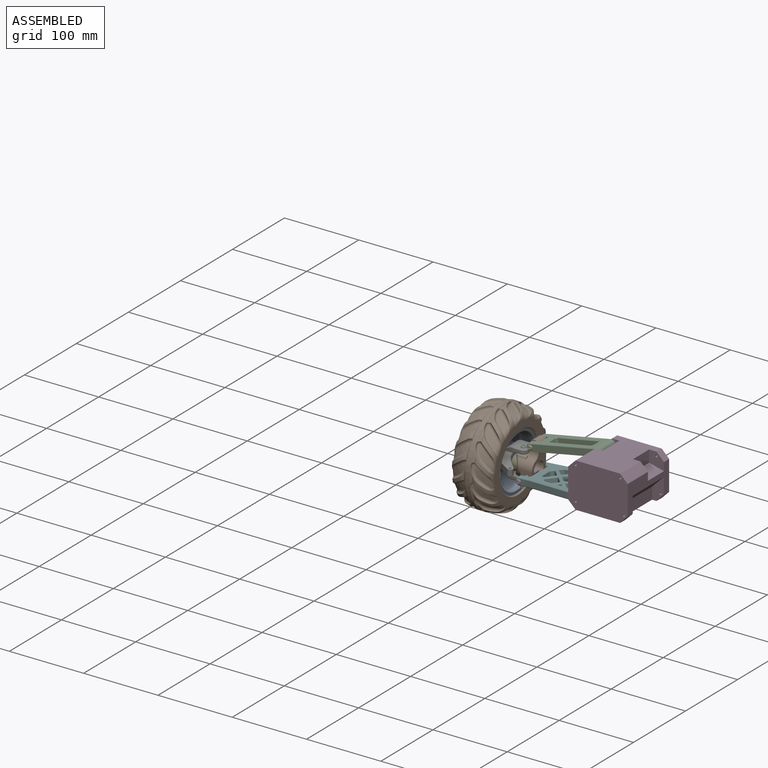
[diagram: assembled view]
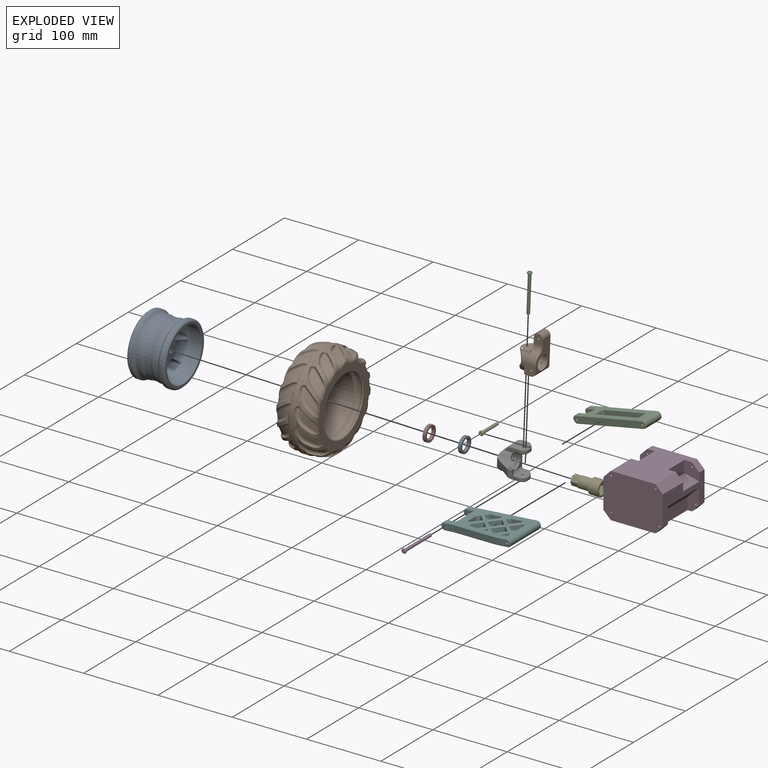
[diagram: exploded view]
GUIDED TOUR — MATED ASSEMBLY (Onshape document 58fa4ad1b70dc3100ced689d, AutoMate assembly 58fa4ad1b70dc3100ced689d_4a7124a2e495755a94dfebb5_230ced2a4817f527e9736989_default)

This assembly has 13 components, labeled P0..P12 below (a component is one placed occurrence of a part; the same part can appear more than once), held together by 13 mates. A mate is a constraint between two components; its type names the relative motion it leaves free:
  FASTENED — locks the two components together rigidly (no relative motion),
  REVOLUTE — leaves rotation about the listed axis free (a hinge).
Axis/direction vectors are unit vectors and 'through' points are millimeter coordinates, both in the assembly's world frame.

MATES
  1. REVOLUTE "Revolute 2": P12 <-> P8, axis (-0.999, -0.031, 0.040) through (-144.44, 8.21, 10.37) mm
  2. FASTENED "Fastened 9": P1 <-> P0, direction (-0.999, -0.031, 0.040) through (-191.38, 6.77, 12.23) mm
  3. REVOLUTE "Revolute 3": P9 <-> P5, axis (0.000, 1.000, 0.000) through (-119.72, 22.00, 2.88) mm
  4. FASTENED "Fastened 3": P7 <-> P6, direction (-0.999, -0.031, 0.040) through (-159.42, 7.75, 10.96) mm
  5. FASTENED "Fastened 4": P11 <-> P5, direction (0.000, -1.000, 0.000) through (-119.72, -21.00, 2.88) mm
  6. FASTENED "Fastened 7": P0 <-> P7, direction (0.999, 0.031, -0.040) through (-159.42, 7.75, 10.96) mm
  7. REVOLUTE "Revolute 5": P10 <-> P9, axis (0.000, -1.000, 0.000) through (-118.35, 22.00, 37.36) mm
  8. REVOLUTE "Revolute 1": P6 <-> P9, axis (-0.040, 0.000, -0.999) through (-134.39, 8.50, 23.98) mm
  9. FASTENED "Fastened 1": P4 <-> P10, direction (0.000, 1.000, 0.000) through (-118.35, -1.00, 37.36) mm
  10. REVOLUTE "Revolute 6": P5 <-> P3, axis (0.000, 1.000, 0.000) through (-30.00, 30.00, 10.00) mm
  11. FASTENED "Fastened 8": P2 <-> P6, direction (-0.040, 0.000, -0.999) through (-134.16, 8.50, 29.98) mm
  12. REVOLUTE "Revolute 4": P10 <-> P3, axis (0.000, -1.000, 0.000) through (-30.00, -1.00, 54.50) mm
  13. FASTENED "Fastened 2": P8 <-> P6, direction (0.999, 0.031, -0.040) through (-144.44, 8.21, 10.37) mm

ASSEMBLY ORDER
  1. P6 — the base component [order heuristic]
  2. P2 — core [order heuristic]
  3. P12 — core [order heuristic]
  4. P8 — core [order heuristic]
  5. P9 — core [order heuristic]
  6. P7 — core [order heuristic]
  7. P1 — core [order heuristic]
  8. P0 — core [order heuristic]
  9. P11 [order verified]
  10. P5 [order verified]
  11. P10 [order verified]
  12. P4 [order verified]
  13. P3 [order verified]
Order-tag legend:
  [order verified] — this step's position reverses a verified removal order: the component was checked to insert without passing through the ones already placed.
  [order heuristic] — the first 8 components form the assembly's core: parts whose collision-free extraction could not be verified, listed in mate-graph order.

Of the 13 components, 3 carry the full construction recipe — the FeatureScript program that regenerates the part's solid from scratch; the rest are supplied as boundary geometry only.
Because this assembly has more than 12 components, the tour below covers the 12 most significant ones individually (every recipe-attached component first, then the largest by part volume), in assembly order; the remaining 1 are summarized together in a grouped section at the end.
Each toured component is shown spotlighted twice — in the assembled view, then in the exploded view, where a leader line traces a displaced component back to its assembled socket (saturated green if recipe-attached, orange if geometry-only; every other component desaturated gray) — followed by its recipe or geometry summary and the mates that hold it.
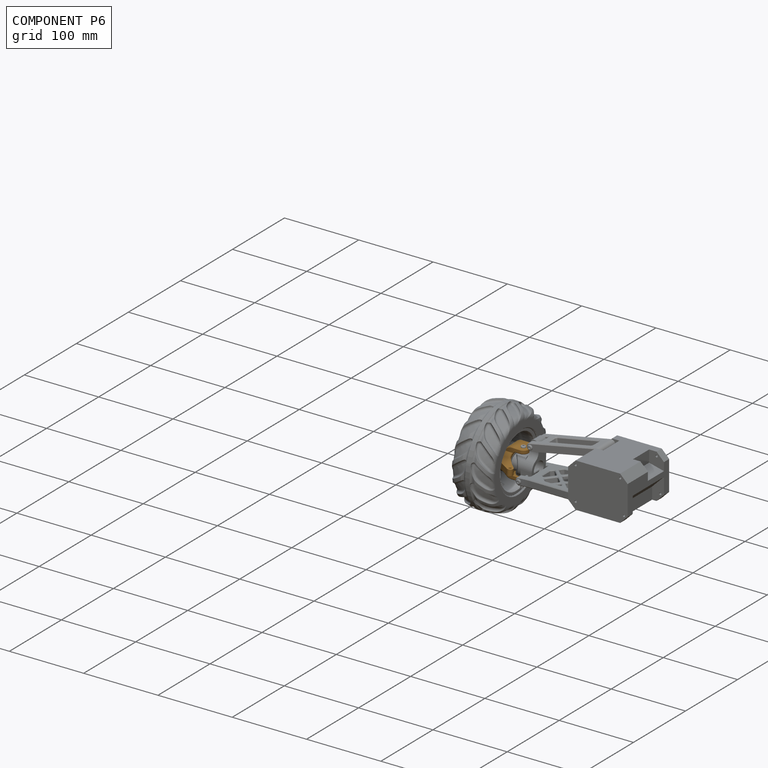
[diagram: component P6 — assembled]
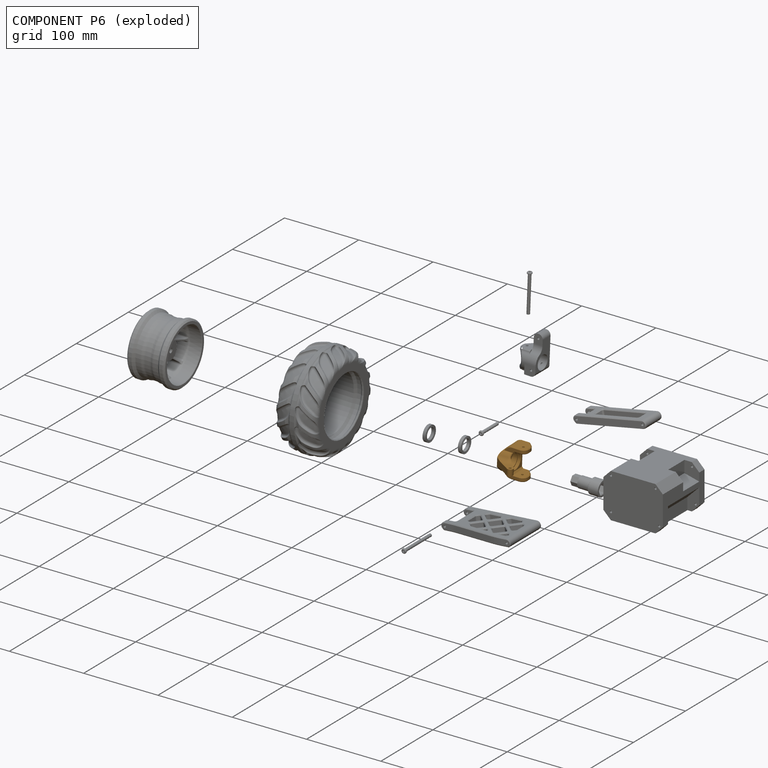
[diagram: component P6 — exploded]
COMPONENT P6 — geometry summary (no construction recipe available for this part):
  bounding box: 44.3 x 40.5 x 32.5 mm
  B-rep topology: 1 solid, 90 faces, 446 edges
  volume: 13637 mm^3 (23% of its bounding box)
Held by: FASTENED mate "Fastened 3" to P7; REVOLUTE mate "Revolute 1" to P9; FASTENED mate "Fastened 8" to P2; FASTENED mate "Fastened 2" to P8.
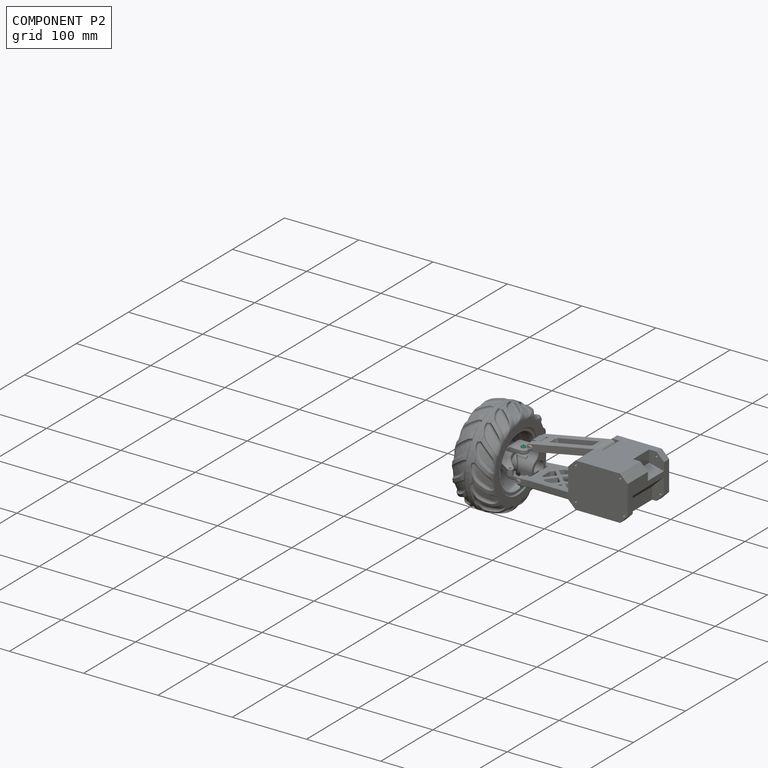
[diagram: component P2 — assembled]
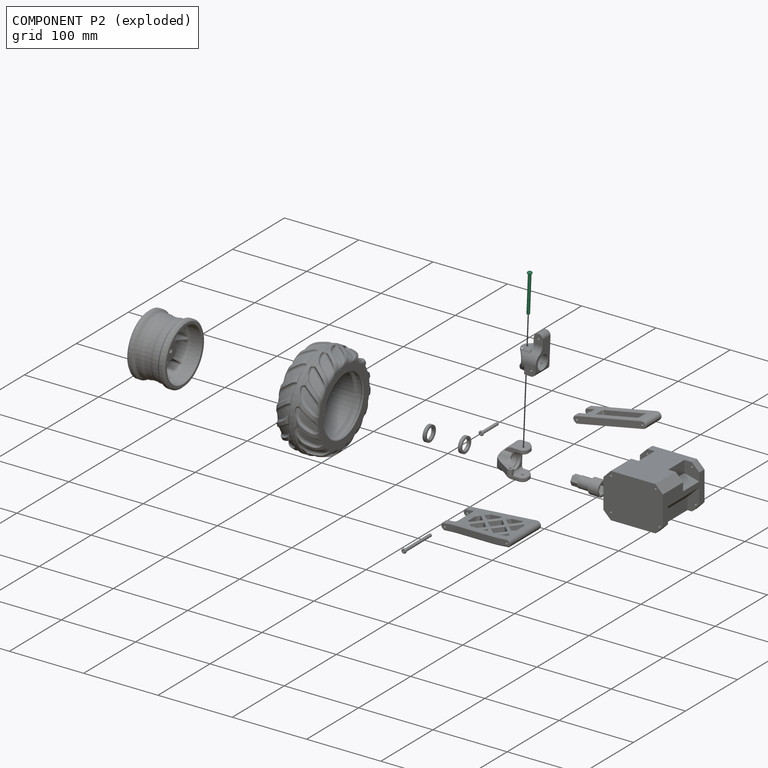
[diagram: component P2 — exploded]
COMPONENT P2 — recipe-attached (CADFS 00728234, mesh-verified: the recipe's output STEP matches this component's geometry to below the mesh-comparison resolution (tessellation chordal tolerance ~0.0792 mm)).
Held by: FASTENED mate "Fastened 8" to P6.
Construction recipe (FeatureScript — the CAD program that rebuilds this solid; sketch coordinates are in the units given by the * unit suffixes, e.g. mm):

FeatureScript 1511;
import(path : "onshape/std/geometry.fs", version : "1511.0");
import(path : "onshape/std/common.fs", version : "1511.0");
const mm = millimeter;
const VERTEX = EntityType.VERTEX;
const EDGE = EntityType.EDGE;
const FACE = EntityType.FACE;
const BODY = EntityType.BODY;
function v(x, y){return vector(x, y);}
function OD(order){return orderDisambiguation(order);}
function OSD(set){return originalSetDisambiguation(set);}
function TD(topology){return topologyDisambiguation(topology);}
function TDD(query){return trueDependencyDisambiguation(query);}
function sQuery(a, b, c) {return sketchEntityQuery(a, b, c);}

annotation { "Feature Type Name" : "Feature", "Feature Type Description" : "" }
export const myFeature = defineFeature(function(context is Context, id is Id, definition is map)
    precondition{}
    {
        {
            var Q0;
            Q0=qCreatedBy(makeId("Top.planeOp"),FACE);
            var sketch = newSketch(context, id + "F0", { "sketchPlane" : qUnion([Q0])});
            skCircle(sketch, "E0", {"center": v(0, 0) * mm, "radius": 3.25 * mm});
            skSolve(sketch);
        }
        {
            var Q0;
            Q0=makeQuery(id+"F0.imprint","IMPRINT",FACE,{"disambiguationData":[TD([[makeQuery(id+"F0.imprint","IMPRINT",EDGE,{"derivedFrom":sQuery(id+"F0.wireOp",EDGE,"E0")}),1.0]])]});
            extrude(context, id + "F1", {"entities" : qUnion([Q0]), "depth" : 2 * mm});
        }
        {
            var Q0;
            Q0=makeQuery(id+"F1.opExtrude","CAP_FACE",FACE,{"disambiguationData":[OSD([sQuery(id+"F0.wireOp",EDGE,"E0")])],"isStart":false});
            var sketch = newSketch(context, id + "F2", { "sketchPlane" : qUnion([Q0])});
            skCircle(sketch, "E1", {"center": v(0, 0) * mm, "radius": 2 * mm});
            skSolve(sketch);
        }
        {
            var Q0;
            Q0=makeQuery(id+"F2.imprint","IMPRINT",FACE,{"disambiguationData":[TD([[makeQuery(id+"F2.imprint","IMPRINT",EDGE,{"derivedFrom":sQuery(id+"F2.wireOp",EDGE,"E1")}),1.0]])]});
            extrude(context, id + "F3", {"entities" : qUnion([Q0]), "operationType" : NewBodyOperationType.ADD, "depth" : 50 * mm});
        }
        {
            var Q0;
            Q0=makeQuery(id+"F1.opExtrude","CAP_FACE",FACE,{"disambiguationData":[OSD([sQuery(id+"F0.wireOp",EDGE,"E0")])],"isStart":true});
            var sketch = newSketch(context, id + "F4", { "sketchPlane" : qUnion([Q0])});
            skCircle(sketch, "E2.cCircle", {"center": v(0, 0) * mm, "radius": 1.25 * mm, "construction": true});
            skLineSegment(sketch, "E2.0", {"start": v(-0.72, 1.25) * mm, "end": v(0.72, 1.25) * mm});
            skLineSegment(sketch, "E2.1", {"start": v(0.72, 1.25) * mm, "end": v(1.44, 0) * mm});
            skLineSegment(sketch, "E2.2", {"start": v(1.44, 0) * mm, "end": v(0.72, -1.25) * mm});
            skLineSegment(sketch, "E2.3", {"start": v(0.72, -1.25) * mm, "end": v(-0.72, -1.25) * mm});
            skLineSegment(sketch, "E2.4", {"start": v(-0.72, -1.25) * mm, "end": v(-1.44, 0) * mm});
            skLineSegment(sketch, "E2.5", {"start": v(-1.44, 0) * mm, "end": v(-0.72, 1.25) * mm});
            skPoint(sketch, "E2.0.midPoint", {"position": v(0, 1.25) * mm});
            skSolve(sketch);
        }
        {
            var Q0;
            Q0=makeQuery(id+"F4.imprint","IMPRINT",FACE,{"disambiguationData":[TD([[makeQuery(id+"F4.imprint","IMPRINT",EDGE,{"derivedFrom":sQuery(id+"F4.wireOp",EDGE,"E2.0")}),-1.0]])]});
            extrude(context, id + "F5", {"entities" : qUnion([Q0]), "operationType" : NewBodyOperationType.REMOVE, "oppositeDirection" : true, "depth" : 1.5 * mm});
        }
        {
            var Q0;
            Q0=makeQuery(id+"F1.opExtrude","CAP_EDGE",EDGE,{"disambiguationData":[OSD([sQuery(id+"F0.wireOp",EDGE,"E0")])],"isStart":true});
            fillet(context, id + "F6", {"entities" : qUnion([Q0]), "radius" : 1.5 * mm, "tangentPropagation" : true, "allowEdgeOverflow" : false});
        }
        {
            var Q0;
            Q0=makeQuery(id+"F5.boolean.opBoolean","COPY",EDGE,{"derivedFrom":makeQuery(id+"F5.opExtrude","CAP_EDGE",EDGE,{"disambiguationData":[OSD([sQuery(id+"F4.wireOp",EDGE,"E2.0")])],"isStart":true})});
            var Q1;
            Q1=makeQuery(id+"F5.boolean.opBoolean","COPY",EDGE,{"derivedFrom":makeQuery(id+"F5.opExtrude","SWEPT_EDGE",EDGE,{"disambiguationData":[OSD([sQuery(id+"F4.wireOp",EDGE,"E2.0"),sQuery(id+"F4.wireOp",EDGE,"E2.1")])]})});
            var Q2;
            Q2=makeQuery(id+"F5.boolean.opBoolean","COPY",EDGE,{"derivedFrom":makeQuery(id+"F5.opExtrude","CAP_EDGE",EDGE,{"disambiguationData":[OSD([sQuery(id+"F4.wireOp",EDGE,"E2.1")])],"isStart":true})});
            var Q3;
            Q3=makeQuery(id+"F5.boolean.opBoolean","COPY",EDGE,{"derivedFrom":makeQuery(id+"F5.opExtrude","SWEPT_EDGE",EDGE,{"disambiguationData":[OSD([sQuery(id+"F4.wireOp",EDGE,"E2.1"),sQuery(id+"F4.wireOp",EDGE,"E2.2")])]})});
            var Q4;
            Q4=makeQuery(id+"F5.boolean.opBoolean","COPY",EDGE,{"derivedFrom":makeQuery(id+"F5.opExtrude","SWEPT_EDGE",EDGE,{"disambiguationData":[OSD([sQuery(id+"F4.wireOp",EDGE,"E2.2"),sQuery(id+"F4.wireOp",EDGE,"E2.3")])]})});
            var Q5;
            Q5=makeQuery(id+"F5.boolean.opBoolean","COPY",FACE,{"derivedFrom":makeQuery(id+"F5.opExtrude","SWEPT_FACE",FACE,{"disambiguationData":[OSD([sQuery(id+"F4.wireOp",EDGE,"E2.3")])]})});
            var Q6;
            Q6=makeQuery(id+"F5.boolean.opBoolean","COPY",FACE,{"derivedFrom":makeQuery(id+"F5.opExtrude","SWEPT_FACE",FACE,{"disambiguationData":[OSD([sQuery(id+"F4.wireOp",EDGE,"E2.4")])]})});
            var Q7;
            Q7=makeQuery(id+"F5.boolean.opBoolean","COPY",FACE,{"derivedFrom":makeQuery(id+"F5.opExtrude","SWEPT_FACE",FACE,{"disambiguationData":[OSD([sQuery(id+"F4.wireOp",EDGE,"E2.5")])]})});
            var Q8;
            Q8=makeQuery(id+"F5.boolean.opBoolean","COPY",FACE,{"derivedFrom":makeQuery(id+"F5.opExtrude","SWEPT_FACE",FACE,{"disambiguationData":[OSD([sQuery(id+"F4.wireOp",EDGE,"E2.0")])]})});
            var Q9;
            Q9=makeQuery(id+"F5.boolean.opBoolean","COPY",FACE,{"derivedFrom":makeQuery(id+"F5.opExtrude","SWEPT_FACE",FACE,{"disambiguationData":[OSD([sQuery(id+"F4.wireOp",EDGE,"E2.1")])]})});
            var Q10;
            Q10=makeQuery(id+"F5.boolean.opBoolean","COPY",FACE,{"derivedFrom":makeQuery(id+"F5.opExtrude","SWEPT_FACE",FACE,{"disambiguationData":[OSD([sQuery(id+"F4.wireOp",EDGE,"E2.2")])]})});
            fillet(context, id + "F7", {"entities" : qUnion([Q0, Q1, Q2, Q3, Q4, Q5, Q6, Q7, Q8, Q9, Q10]), "radius" : 0.2 * mm, "tangentPropagation" : true, "allowEdgeOverflow" : false});
        }
        {
            var Q0;
            Q0=makeQuery(id+"F1.opExtrude","CAP_EDGE",EDGE,{"disambiguationData":[OSD([sQuery(id+"F0.wireOp",EDGE,"E0")])],"isStart":false});
            fillet(context, id + "F8", {"entities" : qUnion([Q0]), "radius" : 0.2 * mm, "tangentPropagation" : true, "allowEdgeOverflow" : false});
        }
    });
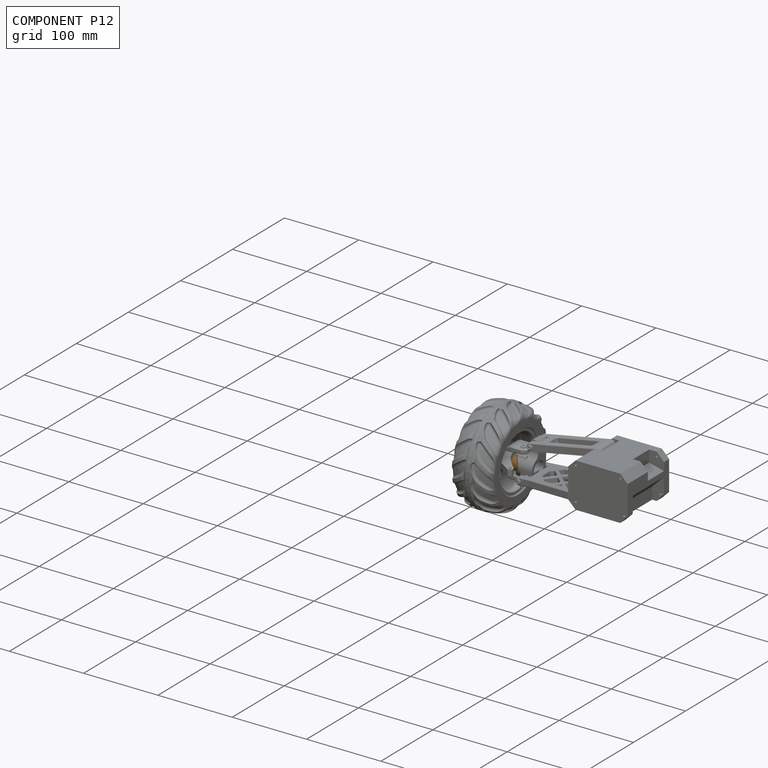
[diagram: component P12 — assembled]
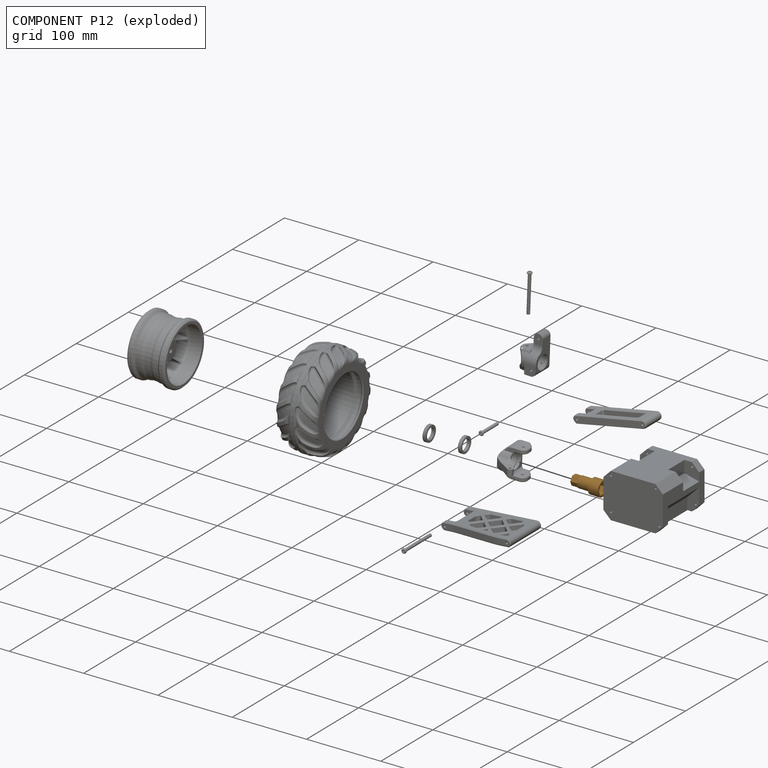
[diagram: component P12 — exploded]
COMPONENT P12 — geometry summary (no construction recipe available for this part):
  bounding box: 38.5 x 20.2 x 20.2 mm
  B-rep topology: 1 solid, 51 faces, 228 edges
  volume: 6569 mm^3 (42% of its bounding box)
  symmetry: 6-fold rotationally symmetric about the z axis; mirror-symmetric across its x mid-plane, y mid-plane
Held by: REVOLUTE mate "Revolute 2" to P8.
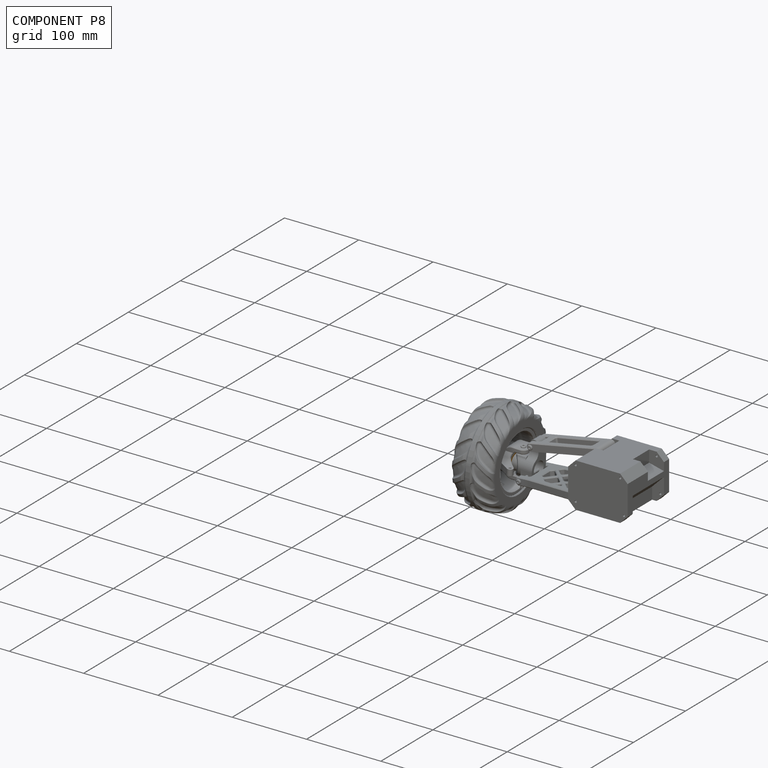
[diagram: component P8 — assembled]
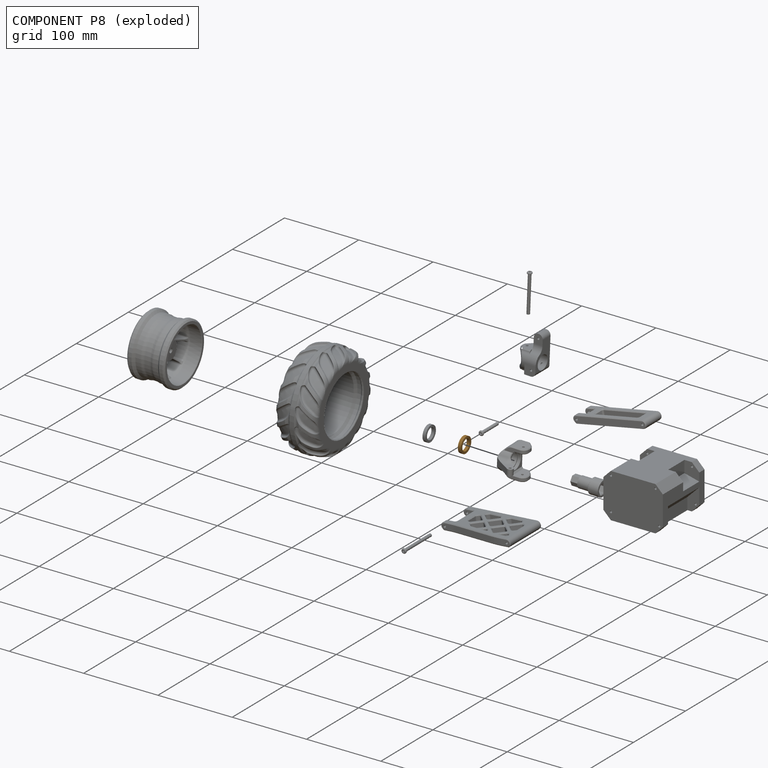
[diagram: component P8 — exploded]
COMPONENT P8 — geometry summary (no construction recipe available for this part):
  bounding box: 21.0 x 21.0 x 4.0 mm
  B-rep topology: 1 solid, 12 faces, 36 edges
  volume: 645 mm^3 (37% of its bounding box)
  symmetry: 2-fold rotationally symmetric about the x axis; 2-fold rotationally symmetric about the y axis; revolution-symmetric about the z axis through its bounding-box center; mirror-symmetric across its x mid-plane, y mid-plane, z mid-plane
Held by: REVOLUTE mate "Revolute 2" to P12; FASTENED mate "Fastened 2" to P6.
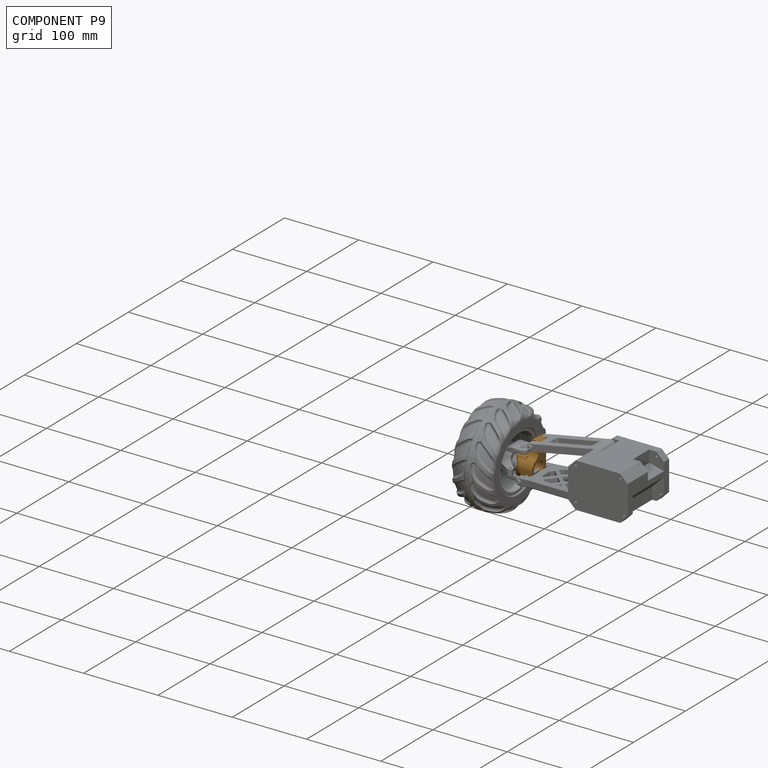
[diagram: component P9 — assembled]
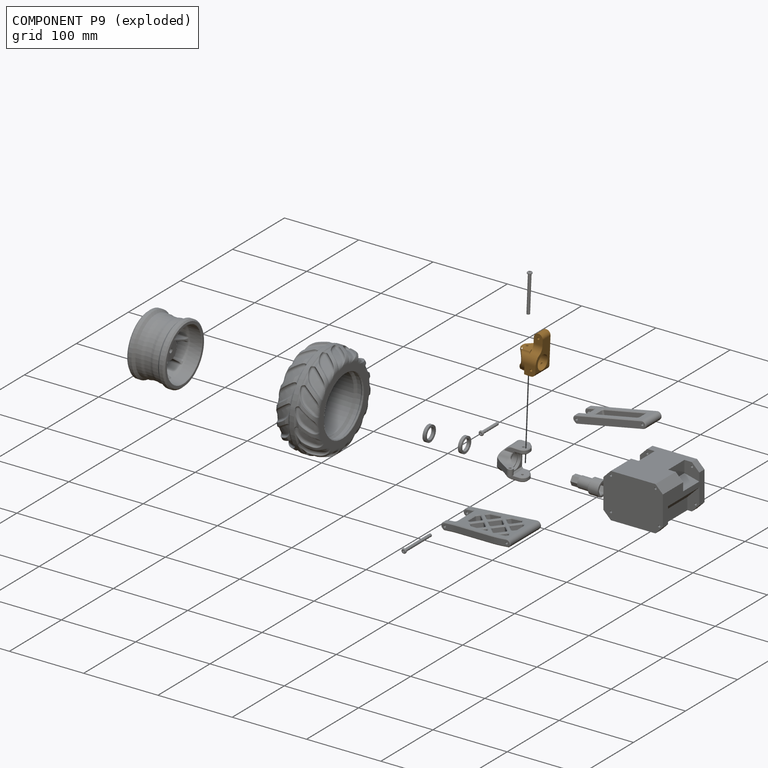
[diagram: component P9 — exploded]
COMPONENT P9 — geometry summary (no construction recipe available for this part):
  bounding box: 48.7 x 29.6 x 27.6 mm
  B-rep topology: 1 solid, 48 faces, 252 edges
  volume: 12895 mm^3 (32% of its bounding box)
Held by: REVOLUTE mate "Revolute 3" to P5; REVOLUTE mate "Revolute 5" to P10; REVOLUTE mate "Revolute 1" to P6.
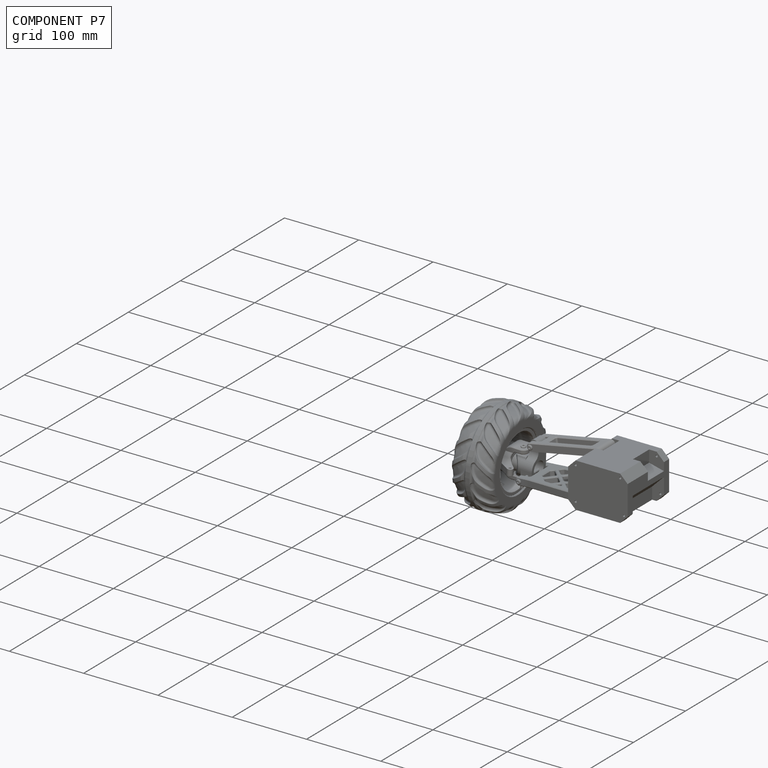
[diagram: component P7 — assembled]
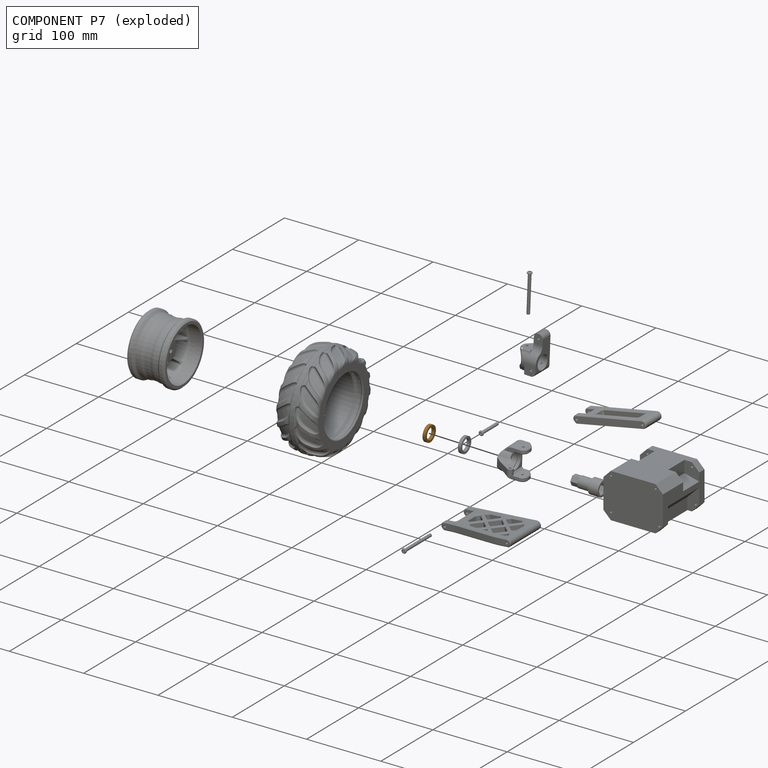
[diagram: component P7 — exploded]
COMPONENT P7 — geometry summary (no construction recipe available for this part):
  bounding box: 21.0 x 21.0 x 4.0 mm
  B-rep topology: 1 solid, 12 faces, 36 edges
  volume: 645 mm^3 (37% of its bounding box)
  symmetry: 2-fold rotationally symmetric about the x axis; 2-fold rotationally symmetric about the y axis; revolution-symmetric about the z axis through its bounding-box center; mirror-symmetric across its x mid-plane, y mid-plane, z mid-plane
Held by: FASTENED mate "Fastened 3" to P6; FASTENED mate "Fastened 7" to P0.
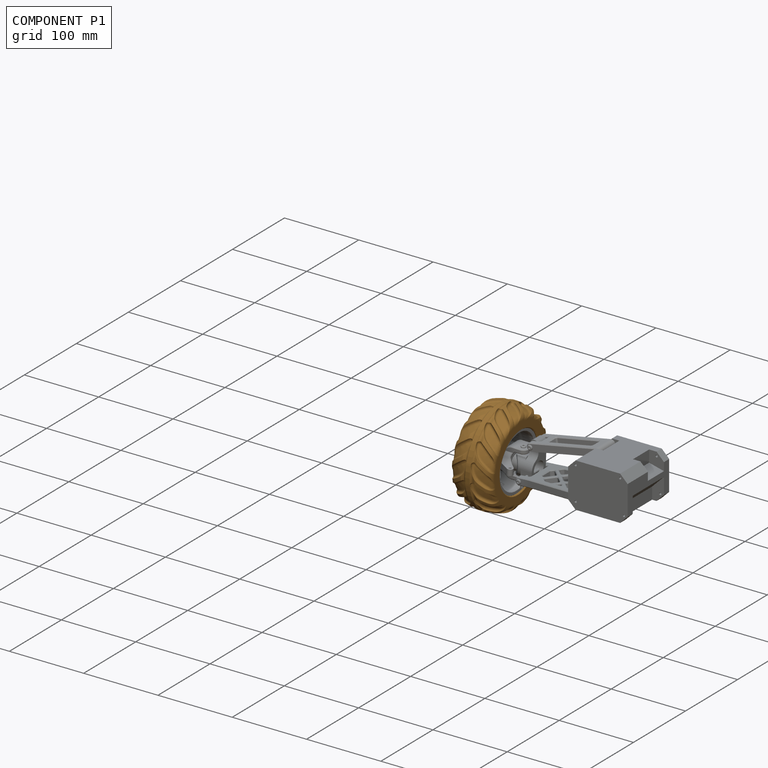
[diagram: component P1 — assembled]
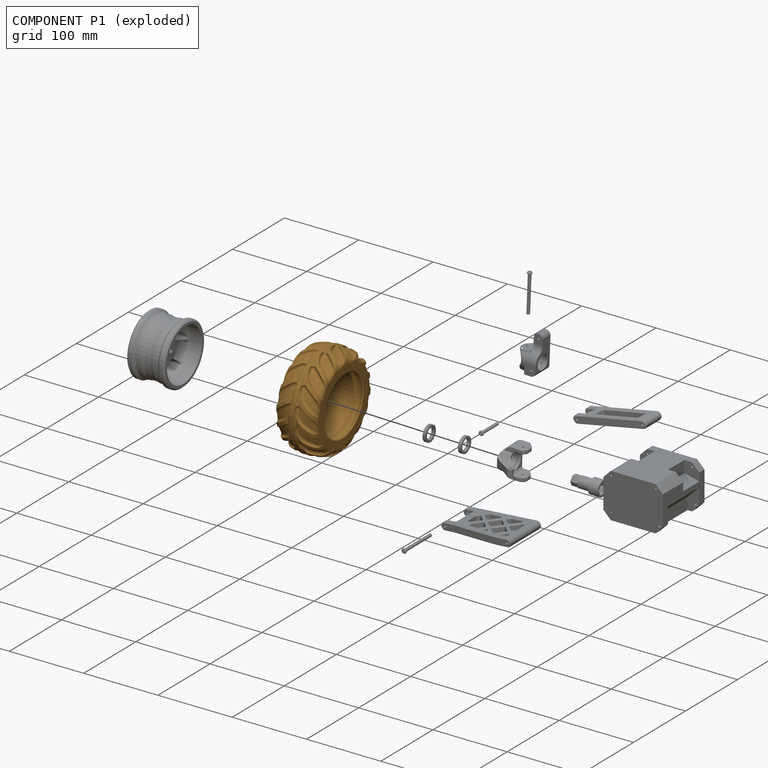
[diagram: component P1 — exploded]
COMPONENT P1 — geometry summary (no construction recipe available for this part):
  bounding box: 144.4 x 144.4 x 63.5 mm
  B-rep topology: 1 solid, 1197 faces, 5656 edges
  volume: 343005 mm^3 (26% of its bounding box)
  symmetry: 4-fold rotationally symmetric about the z axis; mirror-symmetric across its z mid-plane
Held by: FASTENED mate "Fastened 9" to P0.
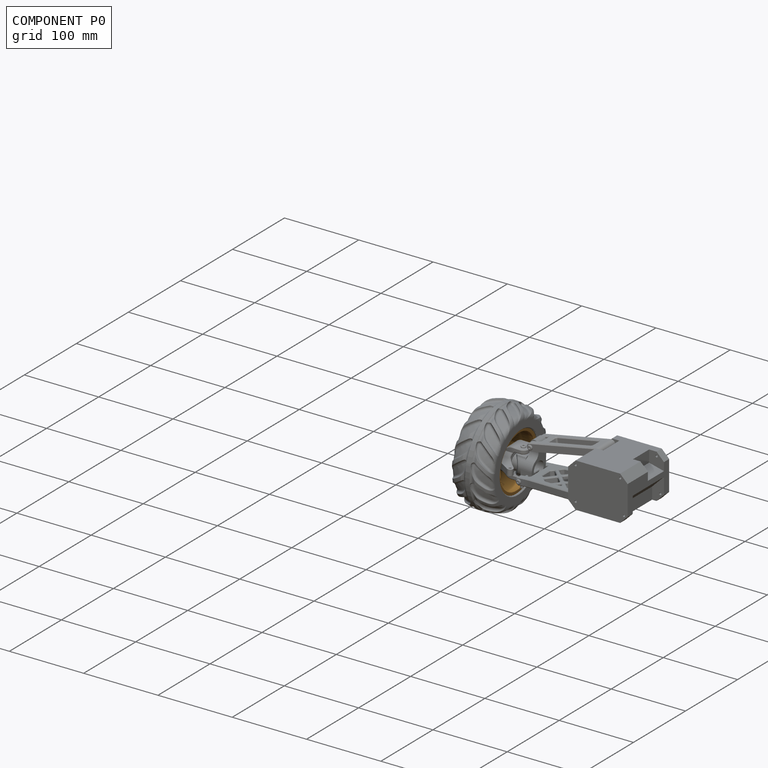
[diagram: component P0 — assembled]
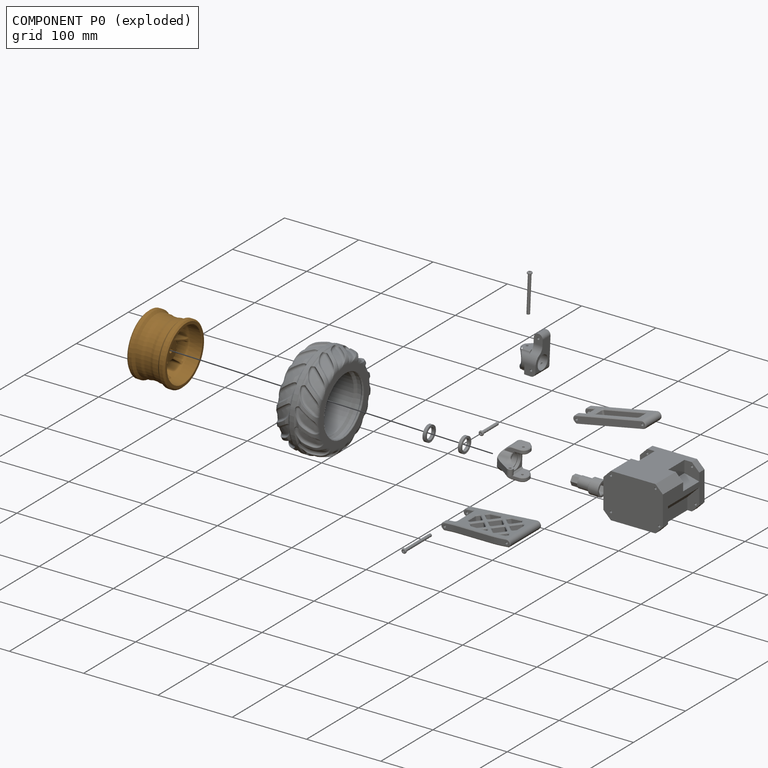
[diagram: component P0 — exploded]
COMPONENT P0 — geometry summary (no construction recipe available for this part):
  bounding box: 99.6 x 99.6 x 51.8 mm
  B-rep topology: 1 solid, 720 faces, 3478 edges
  volume: 81149 mm^3 (16% of its bounding box)
  symmetry: 4-fold rotationally symmetric about the z axis; mirror-symmetric across its x mid-plane, y mid-plane
Held by: FASTENED mate "Fastened 9" to P1; FASTENED mate "Fastened 7" to P7.
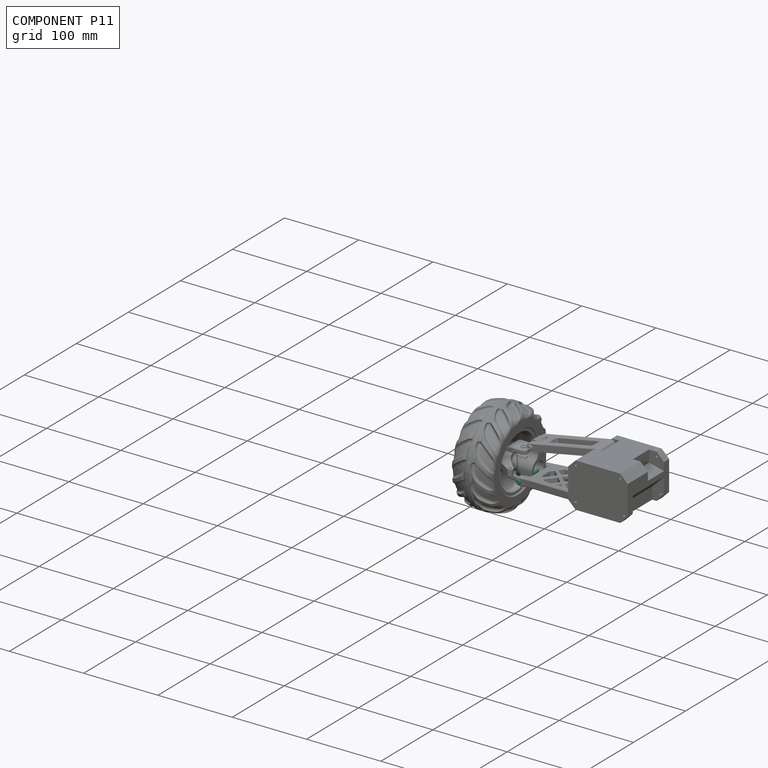
[diagram: component P11 — assembled]
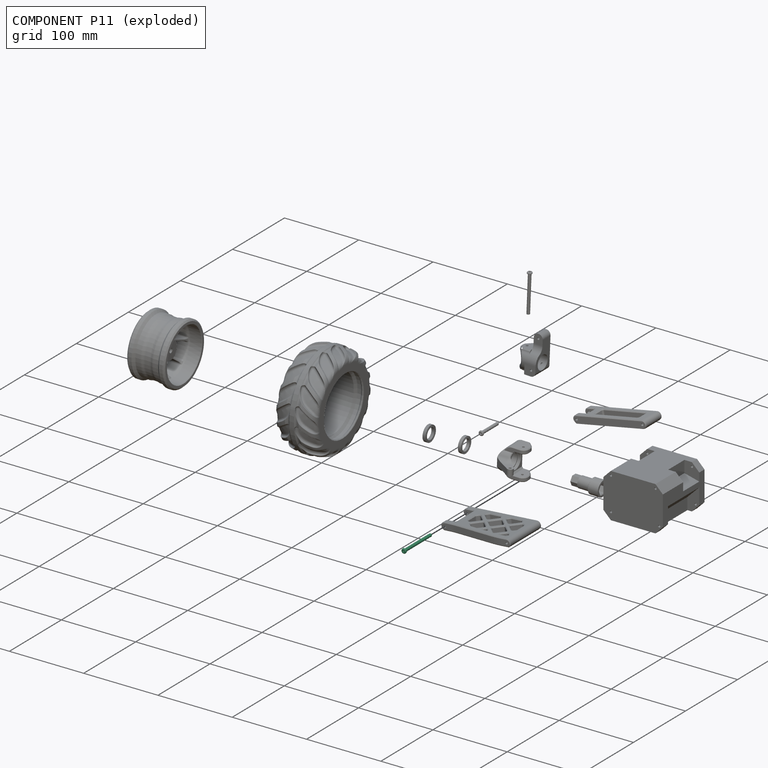
[diagram: component P11 — exploded]
COMPONENT P11 — same part as P2 (CADFS 00728234); its construction recipe is shown at P2.
Held by: FASTENED mate "Fastened 4" to P5.
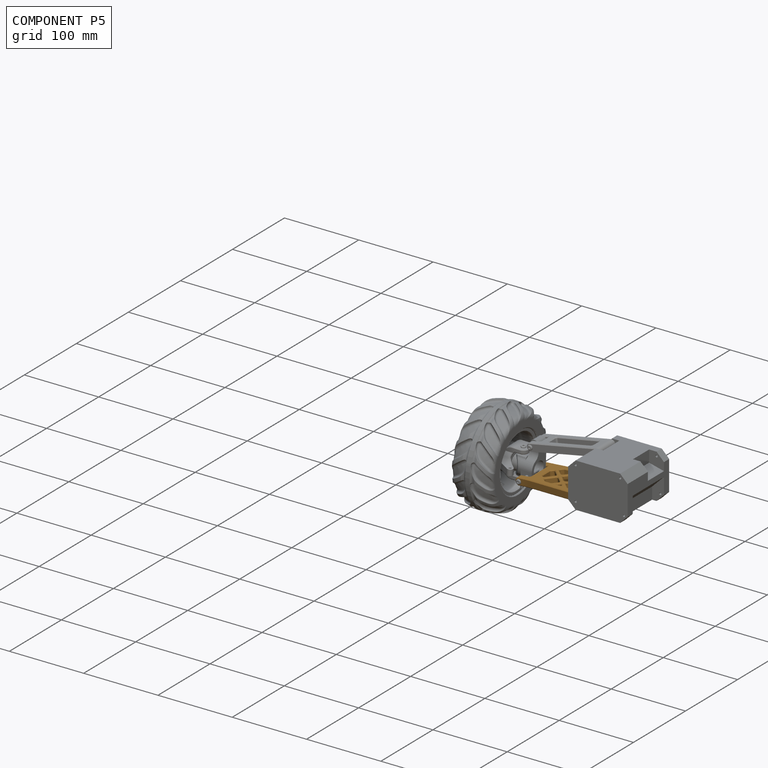
[diagram: component P5 — assembled]
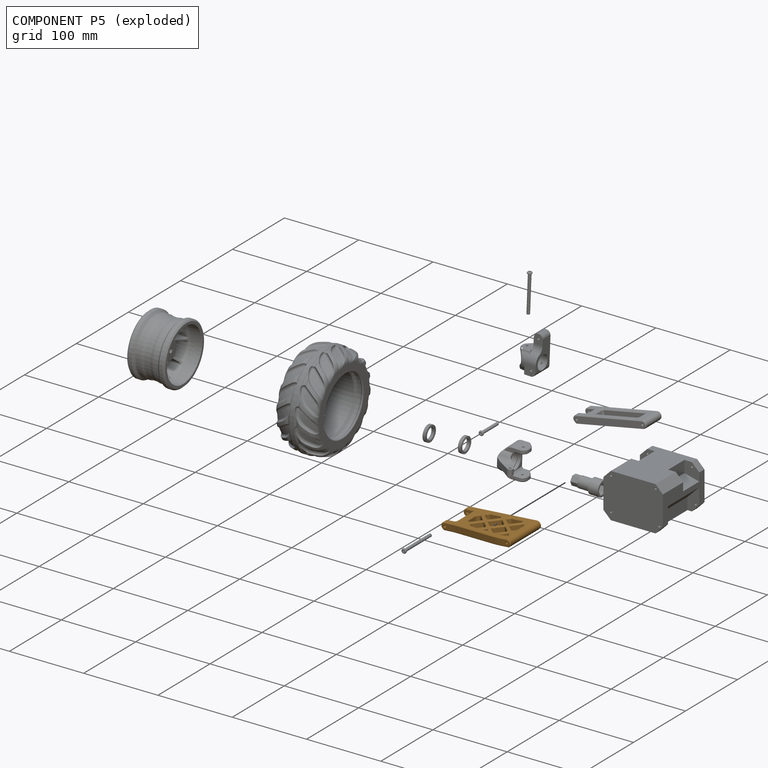
[diagram: component P5 — exploded]
COMPONENT P5 — geometry summary (no construction recipe available for this part):
  bounding box: 100.0 x 60.0 x 10.0 mm
  B-rep topology: 1 solid, 317 faces, 1482 edges
  volume: 33719 mm^3 (56% of its bounding box)
  symmetry: mirror-symmetric across its z mid-plane
Held by: REVOLUTE mate "Revolute 3" to P9; FASTENED mate "Fastened 4" to P11; REVOLUTE mate "Revolute 6" to P3.
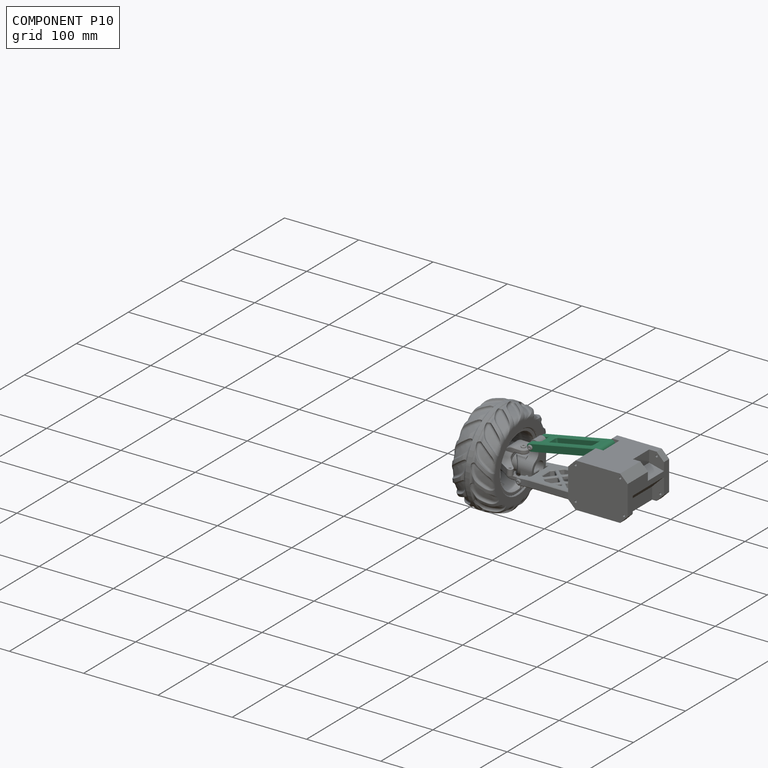
[diagram: component P10 — assembled]
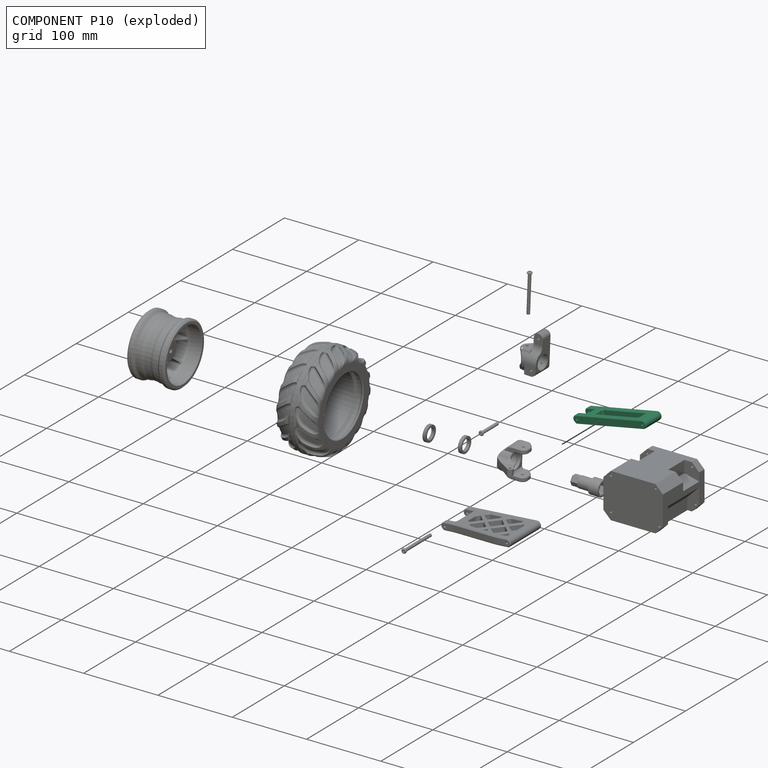
[diagram: component P10 — exploded]
COMPONENT P10 — recipe-attached (CADFS 00728232, mesh-verified: the recipe's output STEP matches this component's geometry to below the mesh-comparison resolution (tessellation chordal tolerance ~0.158 mm)).
Held by: REVOLUTE mate "Revolute 5" to P9; FASTENED mate "Fastened 1" to P4; REVOLUTE mate "Revolute 4" to P3.
Construction recipe (FeatureScript — the CAD program that rebuilds this solid; sketch coordinates are in the units given by the * unit suffixes, e.g. mm):

FeatureScript 1511;
import(path : "onshape/std/geometry.fs", version : "1511.0");
import(path : "onshape/std/common.fs", version : "1511.0");
const mm = millimeter;
const VERTEX = EntityType.VERTEX;
const EDGE = EntityType.EDGE;
const FACE = EntityType.FACE;
const BODY = EntityType.BODY;
function v(x, y){return vector(x, y);}
function OD(order){return orderDisambiguation(order);}
function OSD(set){return originalSetDisambiguation(set);}
function TD(topology){return topologyDisambiguation(topology);}
function TDD(query){return trueDependencyDisambiguation(query);}
function sQuery(a, b, c) {return sketchEntityQuery(a, b, c);}

annotation { "Feature Type Name" : "Feature", "Feature Type Description" : "" }
export const myFeature = defineFeature(function(context is Context, id is Id, definition is map)
    precondition{}
    {
        {
            var Q0;
            Q0=qCreatedBy(makeId("Top.planeOp"),FACE);
            var sketch = newSketch(context, id + "F0", { "sketchPlane" : qUnion([Q0])});
            skLineSegment(sketch, "E0", {"start": v(-23.95, 7.5) * mm, "end": v(-8.95, 7.5) * mm});
            skLineSegment(sketch, "E1", {"start": v(-8.95, 7.5) * mm, "end": v(-8.95, -7.5) * mm});
            skLineSegment(sketch, "E2", {"start": v(-8.95, -7.5) * mm, "end": v(-23.95, -7.5) * mm});
            skLineSegment(sketch, "E3", {"start": v(-23.95, -7.5) * mm, "end": v(-23.95, -15.5) * mm});
            skLineSegment(sketch, "E4", {"start": v(-23.95, -15.5) * mm, "end": v(76.05, -15.5) * mm});
            skLineSegment(sketch, "E5", {"start": v(76.05, -15.5) * mm, "end": v(76.05, 15.5) * mm});
            skLineSegment(sketch, "E6", {"start": v(76.05, 15.5) * mm, "end": v(-23.95, 15.5) * mm});
            skLineSegment(sketch, "E7", {"start": v(-23.95, 15.5) * mm, "end": v(-23.95, 7.5) * mm});
            skLineSegment(sketch, "E8.bottom", {"start": v(1.05, 7.5) * mm, "end": v(61.05, 7.5) * mm});
            skLineSegment(sketch, "E8.top", {"start": v(1.05, -7.5) * mm, "end": v(61.05, -7.5) * mm});
            skLineSegment(sketch, "E8.left", {"start": v(1.05, 7.5) * mm, "end": v(1.05, -7.5) * mm});
            skLineSegment(sketch, "E8.right", {"start": v(61.05, 7.5) * mm, "end": v(61.05, -7.5) * mm});
            skSolve(sketch);
        }
        {
            var Q0;
            Q0=makeQuery(id+"F0.imprint","IMPRINT",FACE,{"disambiguationData":[TD([[makeQuery(id+"F0.imprint","IMPRINT",EDGE,{"derivedFrom":sQuery(id+"F0.wireOp",EDGE,"E0")}),1.0]])]});
            extrude(context, id + "F1", {"entities" : qUnion([Q0]), "depth" : 10 * mm});
        }
        {
            var Q0;
            Q0=makeQuery(id+"F1.opExtrude","CAP_EDGE",EDGE,{"disambiguationData":[OSD([sQuery(id+"F0.wireOp",EDGE,"E7")])],"isStart":false});
            var Q1;
            Q1=makeQuery(id+"F1.opExtrude","CAP_EDGE",EDGE,{"disambiguationData":[OSD([sQuery(id+"F0.wireOp",EDGE,"E3")])],"isStart":false});
            var Q2;
            Q2=makeQuery(id+"F1.opExtrude","CAP_EDGE",EDGE,{"disambiguationData":[OSD([sQuery(id+"F0.wireOp",EDGE,"E5")])],"isStart":false});
            fillet(context, id + "F2", {"entities" : qUnion([Q0, Q1, Q2]), "radius" : 5 * mm, "tangentPropagation" : true, "allowEdgeOverflow" : false});
        }
        {
            var Q0;
            Q0=makeQuery(id+"F1.opExtrude","CAP_EDGE",EDGE,{"disambiguationData":[OSD([sQuery(id+"F0.wireOp",EDGE,"E7")])],"isStart":true});
            var Q1;
            Q1=makeQuery(id+"F1.opExtrude","CAP_EDGE",EDGE,{"disambiguationData":[OSD([sQuery(id+"F0.wireOp",EDGE,"E3")])],"isStart":true});
            var Q2;
            Q2=makeQuery(id+"F1.opExtrude","CAP_EDGE",EDGE,{"disambiguationData":[OSD([sQuery(id+"F0.wireOp",EDGE,"E5")])],"isStart":true});
            chamfer(context, id + "F3", {"entities" : qUnion([Q0, Q1, Q2]), "width" : 3 * mm, "tangentPropagation" : true});
        }
        {
            var Q0;
            {var subQ0=sQuery(id+"F0.wireOp",EDGE,"E5");Q0=makeQuery(id+"F3.opChamfer","BLEND_EDGE",EDGE,{"blendedFrom":[makeQuery(id+"F1.opExtrude","CAP_EDGE",EDGE,{"disambiguationData":[OSD([subQ0])],"isStart":true}),makeQuery(id+"F1.opExtrude","SWEPT_FACE",FACE,{"disambiguationData":[OSD([subQ0])]})],"blendedInto":[makeQuery(id+"F1.opExtrude","SWEPT_FACE",FACE,{"disambiguationData":[OSD([subQ0])]})]});}
            var Q1;
            {var subQ0=sQuery(id+"F0.wireOp",EDGE,"E3");Q1=makeQuery(id+"F3.opChamfer","BLEND_EDGE",EDGE,{"blendedFrom":[makeQuery(id+"F1.opExtrude","CAP_EDGE",EDGE,{"disambiguationData":[OSD([subQ0])],"isStart":true}),makeQuery(id+"F1.opExtrude","SWEPT_FACE",FACE,{"disambiguationData":[OSD([subQ0])]})],"blendedInto":[makeQuery(id+"F1.opExtrude","SWEPT_FACE",FACE,{"disambiguationData":[OSD([subQ0])]})]});}
            var Q2;
            {var subQ0=sQuery(id+"F0.wireOp",EDGE,"E7");Q2=makeQuery(id+"F3.opChamfer","BLEND_EDGE",EDGE,{"blendedFrom":[makeQuery(id+"F1.opExtrude","CAP_EDGE",EDGE,{"disambiguationData":[OSD([subQ0])],"isStart":true}),makeQuery(id+"F1.opExtrude","SWEPT_FACE",FACE,{"disambiguationData":[OSD([subQ0])]})],"blendedInto":[makeQuery(id+"F1.opExtrude","SWEPT_FACE",FACE,{"disambiguationData":[OSD([subQ0])]})]});}
            fillet(context, id + "F4", {"entities" : qUnion([Q0, Q1, Q2]), "radius" : 4 * mm, "tangentPropagation" : true, "allowEdgeOverflow" : false});
        }
        {
            var Q0;
            Q0=makeQuery(id+"F1.opExtrude","SWEPT_EDGE",EDGE,{"disambiguationData":[OSD([sQuery(id+"F0.wireOp",EDGE,"E0"),sQuery(id+"F0.wireOp",EDGE,"E1")])]});
            var Q1;
            Q1=makeQuery(id+"F1.opExtrude","SWEPT_EDGE",EDGE,{"disambiguationData":[OSD([sQuery(id+"F0.wireOp",EDGE,"E1"),sQuery(id+"F0.wireOp",EDGE,"E2")])]});
            var Q2;
            Q2=makeQuery(id+"F1.opExtrude","SWEPT_EDGE",EDGE,{"disambiguationData":[OSD([sQuery(id+"F0.wireOp",EDGE,"E8.bottom"),sQuery(id+"F0.wireOp",EDGE,"E8.left")])]});
            var Q3;
            Q3=makeQuery(id+"F1.opExtrude","SWEPT_EDGE",EDGE,{"disambiguationData":[OSD([sQuery(id+"F0.wireOp",EDGE,"E8.top"),sQuery(id+"F0.wireOp",EDGE,"E8.left")])]});
            var Q4;
            Q4=makeQuery(id+"F1.opExtrude","SWEPT_EDGE",EDGE,{"disambiguationData":[OSD([sQuery(id+"F0.wireOp",EDGE,"E8.bottom"),sQuery(id+"F0.wireOp",EDGE,"E8.right")])]});
            var Q5;
            Q5=makeQuery(id+"F1.opExtrude","SWEPT_EDGE",EDGE,{"disambiguationData":[OSD([sQuery(id+"F0.wireOp",EDGE,"E8.top"),sQuery(id+"F0.wireOp",EDGE,"E8.right")])]});
            fillet(context, id + "F5", {"entities" : qUnion([Q0, Q1, Q2, Q3, Q4, Q5]), "radius" : 2 * mm, "tangentPropagation" : true, "allowEdgeOverflow" : false});
        }
        {
            var Q0;
            Q0=makeQuery(id+"F1.opExtrude","SWEPT_FACE",FACE,{"disambiguationData":[OSD([sQuery(id+"F0.wireOp",EDGE,"E4")])]});
            var sketch = newSketch(context, id + "F6", { "sketchPlane" : qUnion([Q0])});
            skCircle(sketch, "E9", {"center": v(-18.95, 5) * mm, "radius": 1.5 * mm});
            skCircle(sketch, "E10", {"center": v(71.05, 5) * mm, "radius": 1.5 * mm});
            skSolve(sketch);
        }
        {
            var Q0;
            Q0=makeQuery(id+"F6.imprint","IMPRINT",FACE,{"disambiguationData":[TD([[makeQuery(id+"F6.imprint","IMPRINT",EDGE,{"derivedFrom":sQuery(id+"F6.wireOp",EDGE,"E9")}),1.0]])]});
            var Q1;
            Q1=makeQuery(id+"F6.imprint","IMPRINT",FACE,{"disambiguationData":[TD([[makeQuery(id+"F6.imprint","IMPRINT",EDGE,{"derivedFrom":sQuery(id+"F6.wireOp",EDGE,"E10")}),1.0]])]});
            extrude(context, id + "F7", {"entities" : qUnion([Q0, Q1]), "operationType" : NewBodyOperationType.REMOVE, "endBound" : BoundingType.THROUGH_ALL, "oppositeDirection" : true, "depth" : 25 * mm});
        }
        {
            var Q0;
            Q0=makeQuery(id+"F1.opExtrude","CAP_EDGE",EDGE,{"disambiguationData":[OSD([sQuery(id+"F0.wireOp",EDGE,"E0")])],"isStart":false});
            var Q1;
            Q1=makeQuery(id+"F1.opExtrude","CAP_EDGE",EDGE,{"disambiguationData":[OSD([sQuery(id+"F0.wireOp",EDGE,"E6")])],"isStart":false});
            var Q2;
            Q2=makeQuery(id+"F1.opExtrude","CAP_EDGE",EDGE,{"disambiguationData":[OSD([sQuery(id+"F0.wireOp",EDGE,"E8.bottom")])],"isStart":false});
            var Q3;
            Q3=makeQuery(id+"F1.opExtrude","CAP_EDGE",EDGE,{"disambiguationData":[OSD([sQuery(id+"F0.wireOp",EDGE,"E8.bottom")])],"isStart":true});
            var Q4;
            Q4=makeQuery(id+"F1.opExtrude","CAP_EDGE",EDGE,{"disambiguationData":[OSD([sQuery(id+"F0.wireOp",EDGE,"E4")])],"isStart":false});
            chamfer(context, id + "F8", {"entities" : qUnion([Q0, Q1, Q2, Q3, Q4]), "width" : 1 * mm, "tangentPropagation" : true});
        }
    });
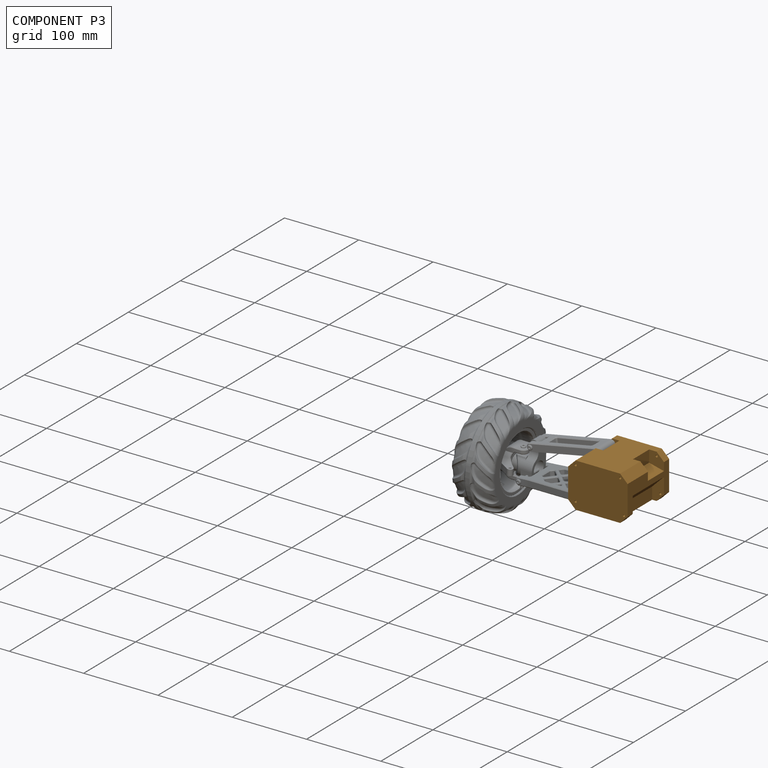
[diagram: component P3 — assembled]
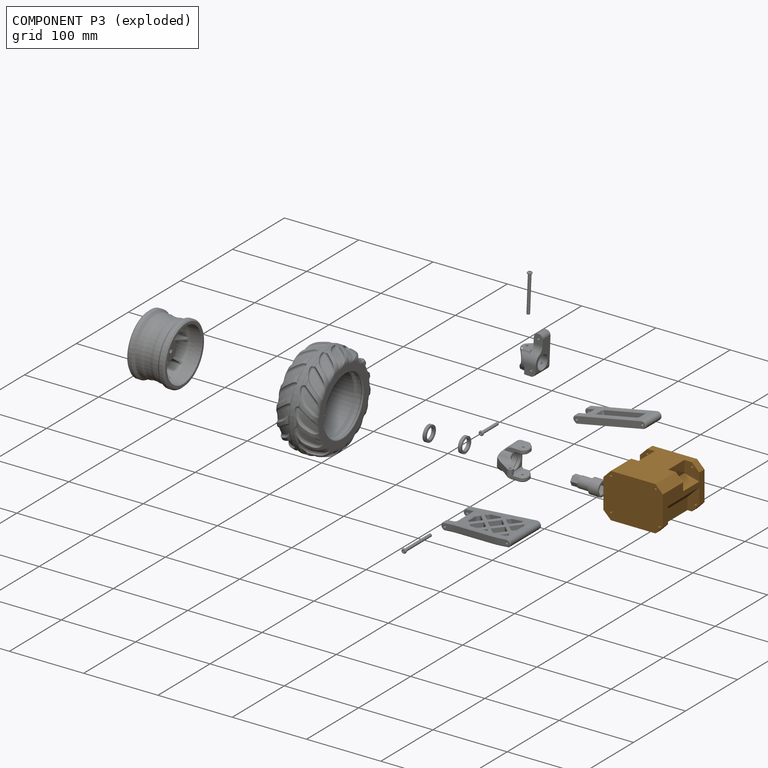
[diagram: component P3 — exploded]
COMPONENT P3 — geometry summary (no construction recipe available for this part):
  bounding box: 80.0 x 80.0 x 60.0 mm
  B-rep topology: 1 solid, 38 faces, 230 edges
  volume: 307105 mm^3 (80% of its bounding box)
Held by: REVOLUTE mate "Revolute 6" to P5; REVOLUTE mate "Revolute 4" to P10.
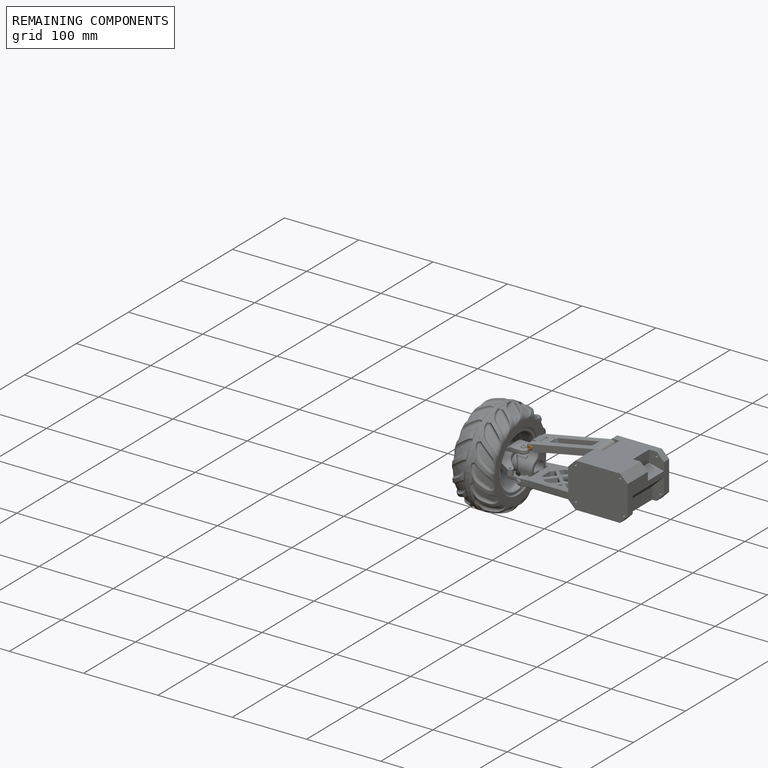
[diagram: remaining components — assembled]
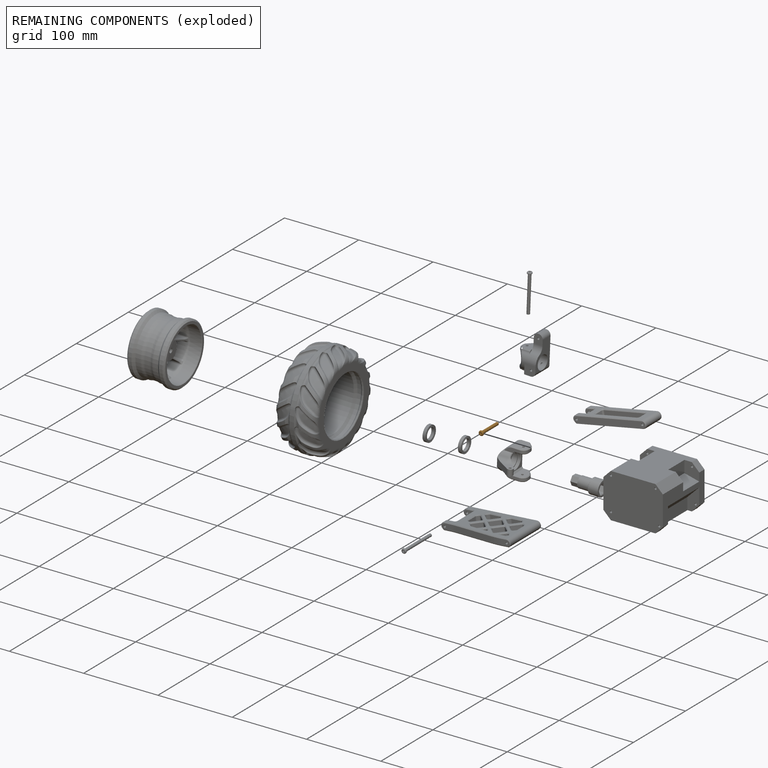
[diagram: remaining components — exploded]
REMAINING COMPONENTS (grouped) — the 1 components below fall outside the per-component tour by the significance rule stated above; both spotlight views highlight the whole group.
  P4: bounding box 32.0 x 7.0 x 7.0 mm, volume 426 mm^3. Held by: FASTENED mate "Fastened 1" to P10.
PROVENANCE & LICENSES
Assembly (occurrences, transforms, mates, per-part STEP geometry): AutoMate dataset, Zenodo record 7776208, CC0.
Construction recipes: CADFS (HuggingFace VladPyatov/CADFS, CC-BY-4.0, layered over the ABC dataset), FeatureScript reconstruction programs keyed by ABC model id.
Join: ABC meta listings map ABC model id -> Onshape documentId; within a shared document, parts are matched by geometric signature (bounding-box dims + volume at 0.1% relative tolerance, exact B-rep face/solid counts).
Verification: 3 of this assembly's 13 components carry a recipe attachment, and every attachment is mesh-verified: the CADFS STEP and the AutoMate member STEP were compared as meshes in their shared local frame (symmetric sampled-point-to-mesh distance); worst across the 3 attachments: below the mesh-comparison resolution (tessellation chordal tolerance ~0.158 mm) on a 105 mm part.
Renders: orthographic iso camera (az 35 / el 25); the floor grid conveys scale (grid pitch printed in each image; no ruler). In the exploded view each component is displaced by its stored offset vector: the offsets alone carry the explosion direction (mate normal/axis signs are not orientation cues and do not encode it), and separation distances are assigned per mate-chain, not proportionally to assembly-order depth.
